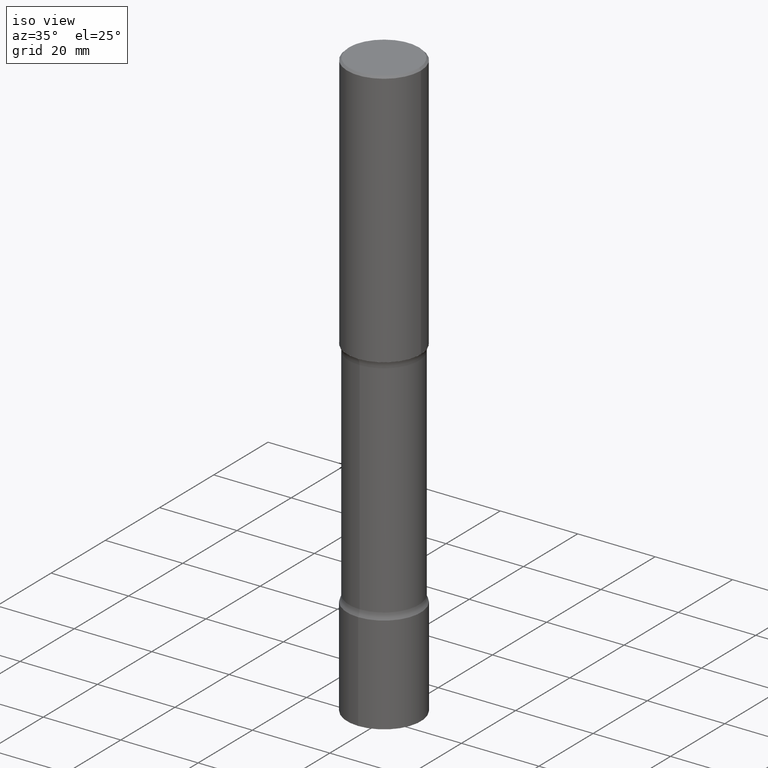
[diagram: clean part render]
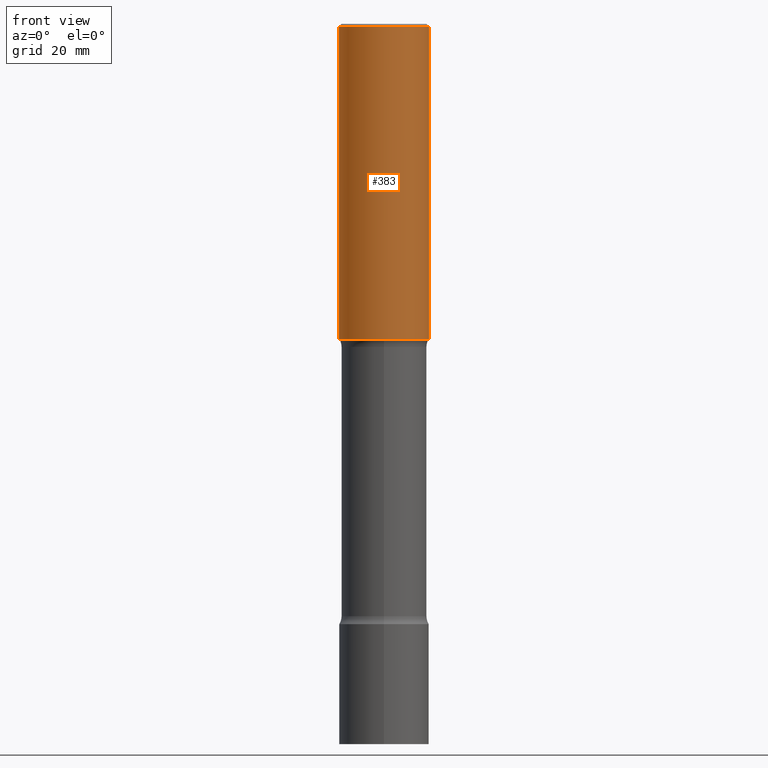
[diagram: tour spotlight — one face highlighted and labeled with its STEP entity id]
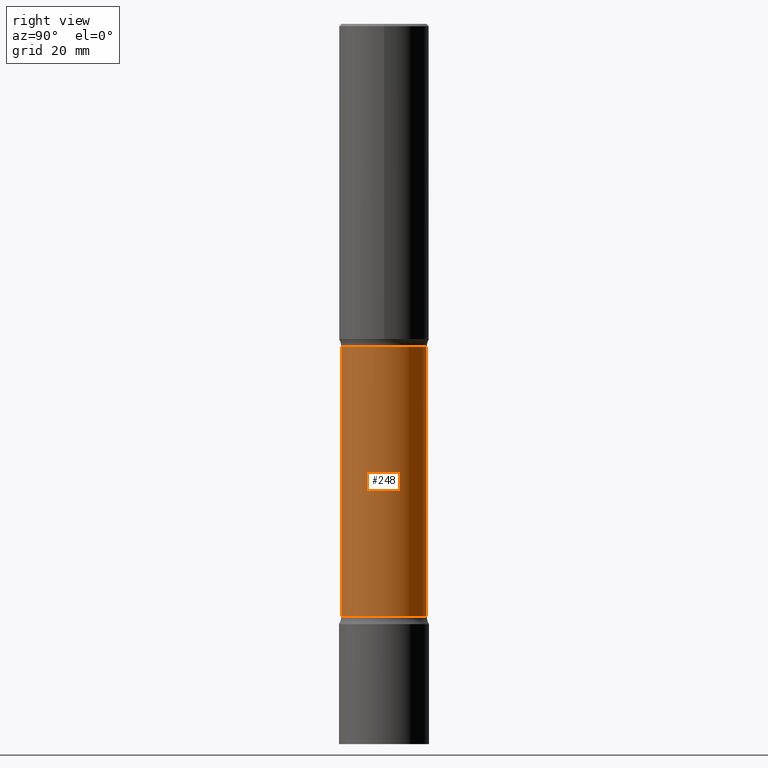
[diagram: tour spotlight — one face highlighted and labeled with its STEP entity id]
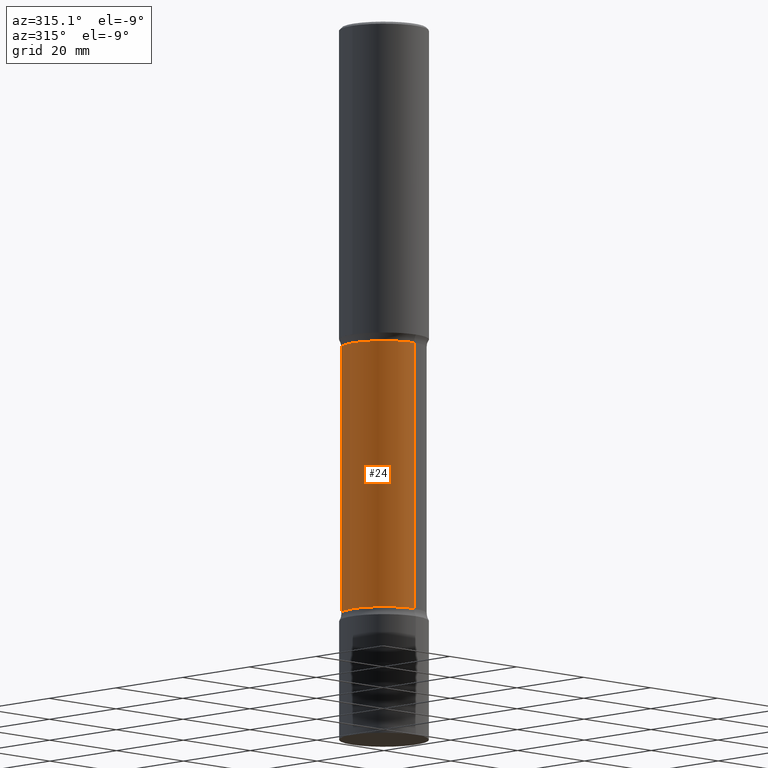
[diagram: tour spotlight — one face highlighted and labeled with its STEP entity id]
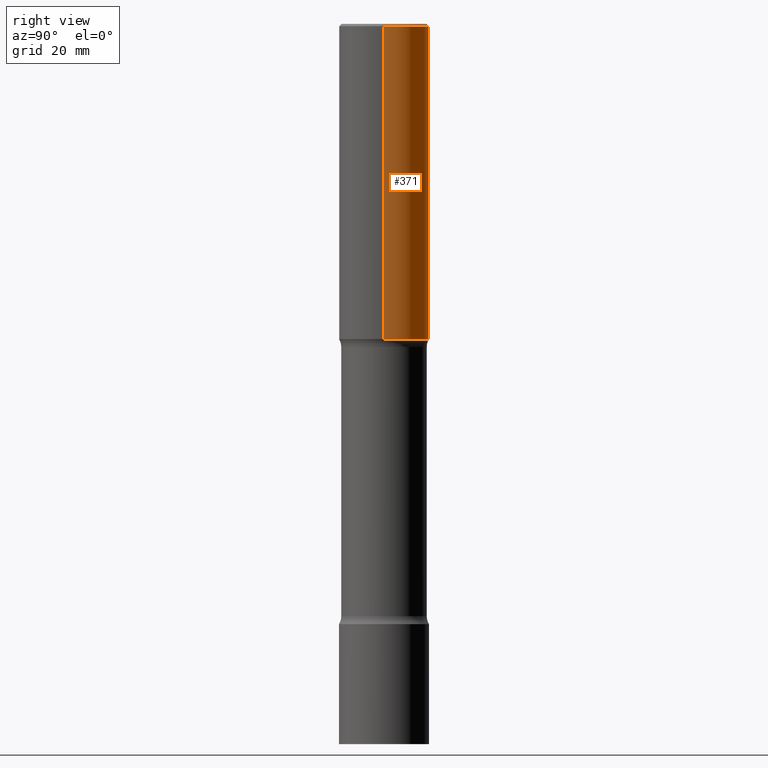
[diagram: tour spotlight — one face highlighted and labeled with its STEP entity id]
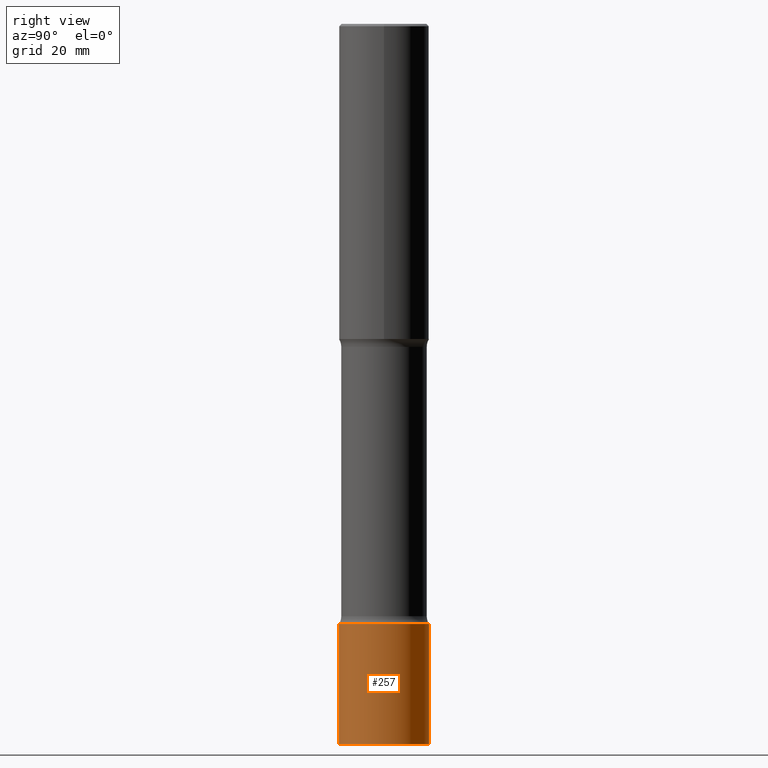
[diagram: tour spotlight — one face highlighted and labeled with its STEP entity id]
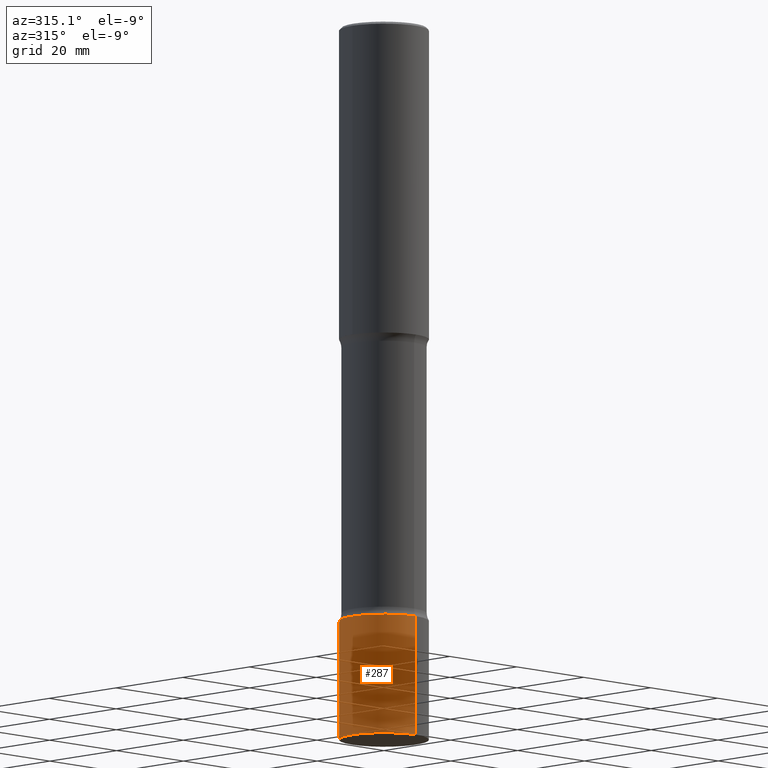
[diagram: tour spotlight — one face highlighted and labeled with its STEP entity id]
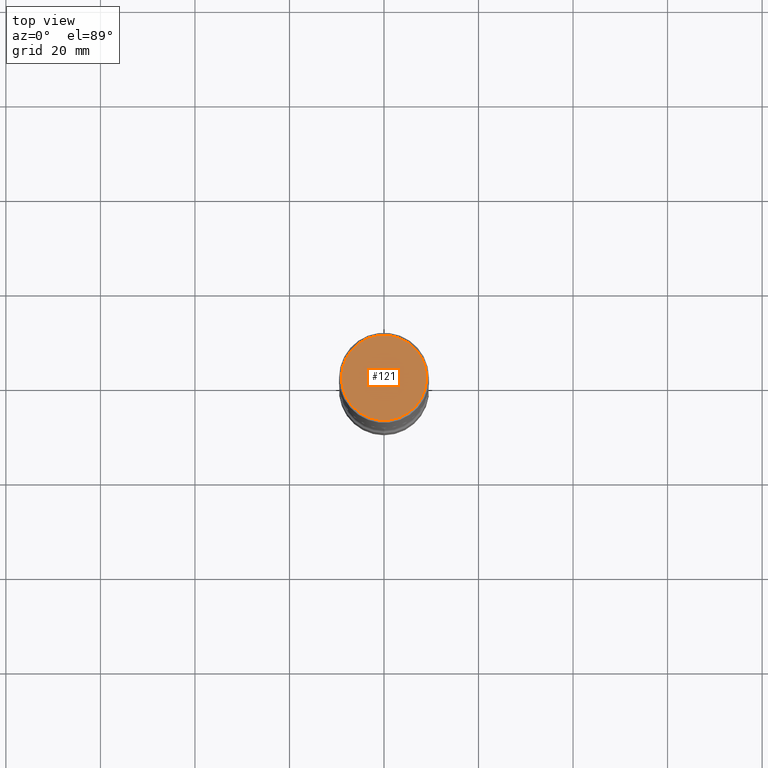
[diagram: tour spotlight — one face highlighted and labeled with its STEP entity id]
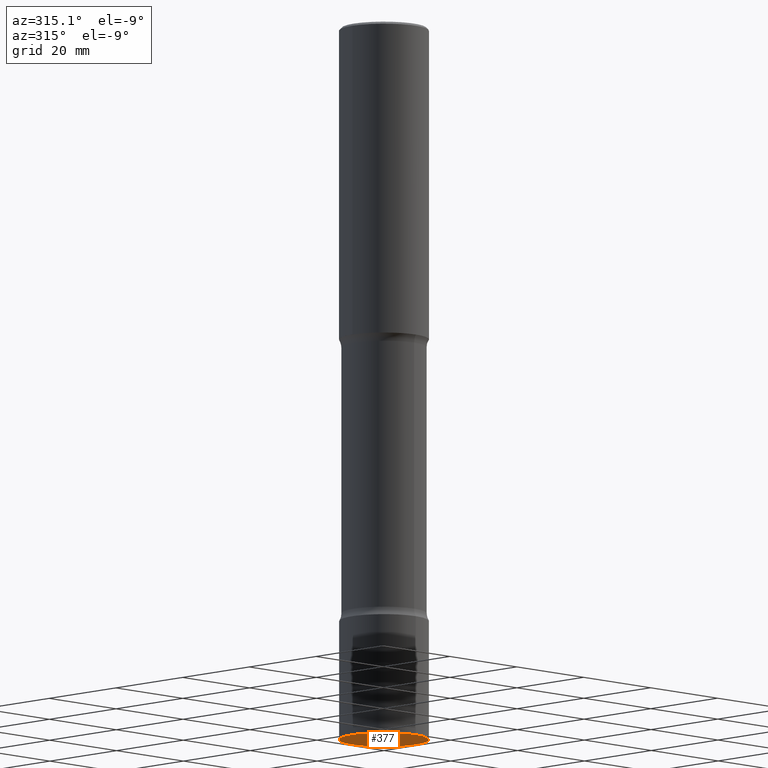
[diagram: tour spotlight — one face highlighted and labeled with its STEP entity id]
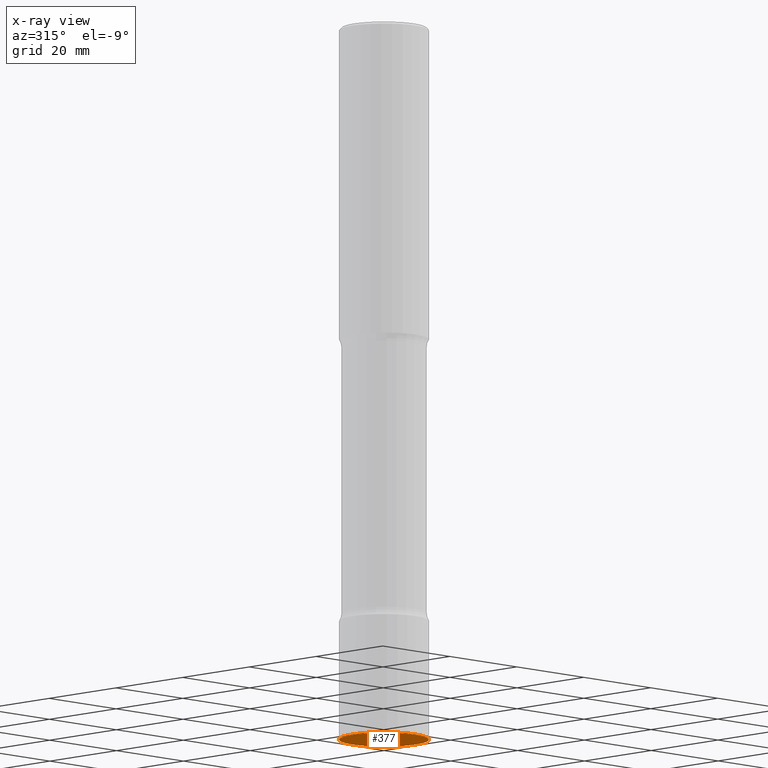
[diagram: x-ray of the same camera — body ghosted, this tour face saturated]
A machine part: a face-by-face anatomy tour. The part has 18 B-rep faces; the first image is the clean iso view, then the 8 largest visible faces are spotlighted one at a time (largest first), each with its STEP entity span.

Face 1 — front view, entity #383. In plain terms, the highlighted cylindrical surface (partial cylindrical patch) has radius 9.525 mm, axis along (-0, 0, 1).
Definition (entity closure, byte-faithful):
#4 = AXIS2_PLACEMENT_3D ( 'NONE', #171, #95, #211 ) ;
#8 = CARTESIAN_POINT ( 'NONE',  ( 0.000000000000000000, 0.000000000000000000, 0.000000000000000000 ) ) ;
#13 = ORIENTED_EDGE ( 'NONE', *, *, #40, .F. ) ;
#15 = CYLINDRICAL_SURFACE ( 'NONE', #177, 0.3749999999999999445 ) ;
#18 = LINE ( 'NONE', #491, #428 ) ;
#28 = CARTESIAN_POINT ( 'NONE',  ( -0.3749999999999999445, 2.664535259100375303E-15, -1.844600658845589318E-29 ) ) ;
#40 = EDGE_CURVE ( 'NONE', #492, #217, #92, .T. ) ;
#51 = DIRECTION ( 'NONE',  ( -2.445468806185136597E-29, 3.491481338843145583E-15, 1.000000000000000000 ) ) ;
#70 = CARTESIAN_POINT ( 'NONE',  ( -0.3750000000000001110, -1.952948811519681892E-15, -2.625000000000000000 ) ) ;
#89 = VERTEX_POINT ( 'NONE', #70 ) ;
#92 = CIRCLE ( 'NONE', #4, 0.3749999999999998890 ) ;
#95 = DIRECTION ( 'NONE',  ( -2.445468806185136597E-29, 3.491481338843145583E-15, 1.000000000000000000 ) ) ;
#97 = ORIENTED_EDGE ( 'NONE', *, *, #182, .F. ) ;
#104 = EDGE_CURVE ( 'NONE', #89, #352, #422, .T. ) ;
#132 = DIRECTION ( 'NONE',  ( 1.000000000000000000, -6.982962677686266711E-15, 4.876176775795935793E-29 ) ) ;
#142 = CARTESIAN_POINT ( 'NONE',  ( 6.419355616235983567E-29, -9.165138514463256612E-15, -2.625000000000000000 ) ) ;
#154 = ORIENTED_EDGE ( 'NONE', *, *, #104, .T. ) ;
#171 = CARTESIAN_POINT ( 'NONE',  ( 4.890937612370289799E-31, -6.982962677686315028E-17, -0.02000000000000006981 ) ) ;
#172 = AXIS2_PLACEMENT_3D ( 'NONE', #142, #375, #295 ) ;
#177 = AXIS2_PLACEMENT_3D ( 'NONE', #8, #51, #132 ) ;
#181 = DIRECTION ( 'NONE',  ( -2.445468806185136877E-29, 3.491481338843145188E-15, 1.000000000000000000 ) ) ;
#182 = EDGE_CURVE ( 'NONE', #89, #492, #331, .T. ) ;
#197 = VECTOR ( 'NONE', #181, 39.37007874015748143 ) ;
#211 = DIRECTION ( 'NONE',  ( 1.000000000000000000, -6.982962677686266711E-15, 0.000000000000000000 ) ) ;
#217 = VERTEX_POINT ( 'NONE', #259 ) ;
#240 = CARTESIAN_POINT ( 'NONE',  ( 0.3750000000000001110, -1.178374951859560821E-14, -2.625000000000000000 ) ) ;
#259 = CARTESIAN_POINT ( 'NONE',  ( 0.3749999999999998890, -2.642516375941187240E-15, -0.02000000000000006981 ) ) ;
#285 = CARTESIAN_POINT ( 'NONE',  ( -0.3749999999999998890, 2.548781377355485929E-15, -0.02000000000000006981 ) ) ;
#295 = DIRECTION ( 'NONE',  ( 1.000000000000000000, -6.982962677686265922E-15, 0.000000000000000000 ) ) ;
#331 = LINE ( 'NONE', #28, #197 ) ;
#352 = VERTEX_POINT ( 'NONE', #240 ) ;
#364 = DIRECTION ( 'NONE',  ( -2.445468806185136877E-29, 3.491481338843145188E-15, 1.000000000000000000 ) ) ;
#367 = FACE_OUTER_BOUND ( 'NONE', #437, .T. ) ;
#375 = DIRECTION ( 'NONE',  ( -2.445468806185136597E-29, 3.491481338843145583E-15, 1.000000000000000000 ) ) ;
#383 = ADVANCED_FACE ( 'NONE', ( #367 ), #15, .T. ) ;
#394 = EDGE_CURVE ( 'NONE', #352, #217, #18, .T. ) ;
#422 = CIRCLE ( 'NONE', #172, 0.3750000000000001110 ) ;
#428 = VECTOR ( 'NONE', #364, 39.37007874015748143 ) ;
#437 = EDGE_LOOP ( 'NONE', ( #97, #154, #472, #13 ) ) ;
#472 = ORIENTED_EDGE ( 'NONE', *, *, #394, .T. ) ;
#491 = CARTESIAN_POINT ( 'NONE',  ( 0.3749999999999999445, -2.618611004132349622E-15, 1.828566290923475642E-29 ) ) ;
#492 = VERTEX_POINT ( 'NONE', #285 ) ;

Face 2 — right view, entity #248. In plain terms, the highlighted cylindrical surface (partial cylindrical patch) has radius 9.0424 mm, axis along (0, -0, -1).
Definition (entity closure, byte-faithful):
#6 = VERTEX_POINT ( 'NONE', #283 ) ;
#11 = ORIENTED_EDGE ( 'NONE', *, *, #58, .T. ) ;
#14 = EDGE_CURVE ( 'NONE', #313, #174, #178, .T. ) ;
#17 = CIRCLE ( 'NONE', #261, 0.3560000000000000386 ) ;
#23 = CARTESIAN_POINT ( 'NONE',  ( 6.364136736350787517E-29, -9.707533279983875280E-15, -2.691249528300207583 ) ) ;
#35 = DIRECTION ( 'NONE',  ( 2.539636452137639577E-29, -3.356627910149604174E-15, -1.000000000000000000 ) ) ;
#47 = ORIENTED_EDGE ( 'NONE', *, *, #309, .F. ) ;
#58 = EDGE_CURVE ( 'NONE', #201, #174, #127, .T. ) ;
#91 = CARTESIAN_POINT ( 'NONE',  ( 1.205927387616141491E-28, -1.723477453513573671E-14, -4.933750471699791973 ) ) ;
#115 = AXIS2_PLACEMENT_3D ( 'NONE', #329, #151, #231 ) ;
#127 = LINE ( 'NONE', #288, #302 ) ;
#150 = FACE_OUTER_BOUND ( 'NONE', #434, .T. ) ;
#151 = DIRECTION ( 'NONE',  ( 2.539636452137639577E-29, -3.356627910149603780E-15, -1.000000000000000000 ) ) ;
#174 = VERTEX_POINT ( 'NONE', #298 ) ;
#178 = CIRCLE ( 'NONE', #215, 0.3560000000000003717 ) ;
#184 = DIRECTION ( 'NONE',  ( 6.982962677686265922E-15, 1.000000000000000000, -3.069492127712654929E-15 ) ) ;
#190 = EDGE_CURVE ( 'NONE', #6, #201, #17, .T. ) ;
#191 = CARTESIAN_POINT ( 'NONE',  ( 2.485934713256459712E-15, 0.3559999999999793885, -6.000000000000000888 ) ) ;
#201 = VERTEX_POINT ( 'NONE', #379 ) ;
#215 = AXIS2_PLACEMENT_3D ( 'NONE', #91, #415, #372 ) ;
#228 = CYLINDRICAL_SURFACE ( 'NONE', #115, 0.3560000000000002607 ) ;
#231 = DIRECTION ( 'NONE',  ( 6.982962677686265133E-15, 1.000000000000000000, -3.069492127712652957E-15 ) ) ;
#248 = ADVANCED_FACE ( 'NONE', ( #150 ), #228, .T. ) ;
#261 = AXIS2_PLACEMENT_3D ( 'NONE', #23, #334, #184 ) ;
#283 = CARTESIAN_POINT ( 'NONE',  ( 2.485934713256374910E-15, 0.3559999999999903242, -2.691249528300208915 ) ) ;
#288 = CARTESIAN_POINT ( 'NONE',  ( -2.442337287206519543E-15, -0.3560000000000210774, -5.999999999999998224 ) ) ;
#290 = ORIENTED_EDGE ( 'NONE', *, *, #190, .T. ) ;
#298 = CARTESIAN_POINT ( 'NONE',  ( -2.507512018185375002E-15, -0.3560000000000175802, -4.933750471699791085 ) ) ;
#302 = VECTOR ( 'NONE', #446, 39.37007874015748143 ) ;
#309 = EDGE_CURVE ( 'NONE', #6, #313, #475, .T. ) ;
#313 = VERTEX_POINT ( 'NONE', #346 ) ;
#328 = ORIENTED_EDGE ( 'NONE', *, *, #14, .F. ) ;
#329 = CARTESIAN_POINT ( 'NONE',  ( 1.476716004530718656E-28, -2.081377746101206439E-14, -5.999999999999999112 ) ) ;
#334 = DIRECTION ( 'NONE',  ( 2.539636452137639577E-29, -3.356627910149603780E-15, -1.000000000000000000 ) ) ;
#346 = CARTESIAN_POINT ( 'NONE',  ( 2.485934713256434074E-15, 0.3559999999999831632, -4.933750471699792861 ) ) ;
#372 = DIRECTION ( 'NONE',  ( 6.982962677686265133E-15, 1.000000000000000000, -3.069492127712652168E-15 ) ) ;
#379 = CARTESIAN_POINT ( 'NONE',  ( -2.507512018185432195E-15, -0.3560000000000097531, -2.691249528300206695 ) ) ;
#415 = DIRECTION ( 'NONE',  ( 2.539636452137639577E-29, -3.356627910149603780E-15, -1.000000000000000000 ) ) ;
#430 = VECTOR ( 'NONE', #35, 39.37007874015748143 ) ;
#434 = EDGE_LOOP ( 'NONE', ( #290, #11, #328, #47 ) ) ;
#446 = DIRECTION ( 'NONE',  ( 2.539636452137639577E-29, -3.356627910149604174E-15, -1.000000000000000000 ) ) ;
#475 = LINE ( 'NONE', #191, #430 ) ;

Face 3 — auxiliary view, entity #24. In plain terms, the highlighted cylindrical surface (partial cylindrical patch) has radius 9.0424 mm, axis along (0, -0, -1).
Definition (entity closure, byte-faithful):
#3 = ORIENTED_EDGE ( 'NONE', *, *, #309, .T. ) ;
#6 = VERTEX_POINT ( 'NONE', #283 ) ;
#24 = ADVANCED_FACE ( 'NONE', ( #405 ), #52, .T. ) ;
#26 = AXIS2_PLACEMENT_3D ( 'NONE', #169, #448, #210 ) ;
#35 = DIRECTION ( 'NONE',  ( 2.539636452137639577E-29, -3.356627910149604174E-15, -1.000000000000000000 ) ) ;
#52 = CYLINDRICAL_SURFACE ( 'NONE', #26, 0.3560000000000002607 ) ;
#58 = EDGE_CURVE ( 'NONE', #201, #174, #127, .T. ) ;
#96 = DIRECTION ( 'NONE',  ( 2.539636452137639577E-29, -3.356627910149603780E-15, -1.000000000000000000 ) ) ;
#127 = LINE ( 'NONE', #288, #302 ) ;
#143 = EDGE_CURVE ( 'NONE', #201, #6, #289, .T. ) ;
#155 = CIRCLE ( 'NONE', #348, 0.3560000000000003717 ) ;
#169 = CARTESIAN_POINT ( 'NONE',  ( 1.476716004530718656E-28, -2.081377746101206439E-14, -5.999999999999999112 ) ) ;
#174 = VERTEX_POINT ( 'NONE', #298 ) ;
#191 = CARTESIAN_POINT ( 'NONE',  ( 2.485934713256459712E-15, 0.3559999999999793885, -6.000000000000000888 ) ) ;
#201 = VERTEX_POINT ( 'NONE', #379 ) ;
#210 = DIRECTION ( 'NONE',  ( 6.982962677686265133E-15, 1.000000000000000000, -3.069492127712652957E-15 ) ) ;
#255 = DIRECTION ( 'NONE',  ( 2.539636452137639577E-29, -3.356627910149603780E-15, -1.000000000000000000 ) ) ;
#283 = CARTESIAN_POINT ( 'NONE',  ( 2.485934713256374910E-15, 0.3559999999999903242, -2.691249528300208915 ) ) ;
#288 = CARTESIAN_POINT ( 'NONE',  ( -2.442337287206519543E-15, -0.3560000000000210774, -5.999999999999998224 ) ) ;
#289 = CIRCLE ( 'NONE', #504, 0.3560000000000000386 ) ;
#298 = CARTESIAN_POINT ( 'NONE',  ( -2.507512018185375002E-15, -0.3560000000000175802, -4.933750471699791085 ) ) ;
#302 = VECTOR ( 'NONE', #446, 39.37007874015748143 ) ;
#308 = ORIENTED_EDGE ( 'NONE', *, *, #143, .T. ) ;
#309 = EDGE_CURVE ( 'NONE', #6, #313, #475, .T. ) ;
#313 = VERTEX_POINT ( 'NONE', #346 ) ;
#327 = DIRECTION ( 'NONE',  ( 6.982962677686265133E-15, 1.000000000000000000, -3.069492127712652168E-15 ) ) ;
#346 = CARTESIAN_POINT ( 'NONE',  ( 2.485934713256434074E-15, 0.3559999999999831632, -4.933750471699792861 ) ) ;
#348 = AXIS2_PLACEMENT_3D ( 'NONE', #451, #96, #327 ) ;
#379 = CARTESIAN_POINT ( 'NONE',  ( -2.507512018185432195E-15, -0.3560000000000097531, -2.691249528300206695 ) ) ;
#382 = DIRECTION ( 'NONE',  ( 6.982962677686265922E-15, 1.000000000000000000, -3.069492127712654929E-15 ) ) ;
#387 = EDGE_CURVE ( 'NONE', #174, #313, #155, .T. ) ;
#396 = ORIENTED_EDGE ( 'NONE', *, *, #58, .F. ) ;
#405 = FACE_OUTER_BOUND ( 'NONE', #474, .T. ) ;
#430 = VECTOR ( 'NONE', #35, 39.37007874015748143 ) ;
#432 = ORIENTED_EDGE ( 'NONE', *, *, #387, .F. ) ;
#446 = DIRECTION ( 'NONE',  ( 2.539636452137639577E-29, -3.356627910149604174E-15, -1.000000000000000000 ) ) ;
#448 = DIRECTION ( 'NONE',  ( 2.539636452137639577E-29, -3.356627910149603780E-15, -1.000000000000000000 ) ) ;
#451 = CARTESIAN_POINT ( 'NONE',  ( 1.205927387616141491E-28, -1.723477453513573671E-14, -4.933750471699791973 ) ) ;
#463 = CARTESIAN_POINT ( 'NONE',  ( 6.364136736350787517E-29, -9.707533279983875280E-15, -2.691249528300207583 ) ) ;
#474 = EDGE_LOOP ( 'NONE', ( #396, #308, #3, #432 ) ) ;
#475 = LINE ( 'NONE', #191, #430 ) ;
#504 = AXIS2_PLACEMENT_3D ( 'NONE', #463, #255, #382 ) ;

Face 4 — right view, entity #371. In plain terms, the highlighted cylindrical surface (partial cylindrical patch) has radius 9.525 mm, axis along (-0, 0, 1).
Definition (entity closure, byte-faithful):
#1 = ORIENTED_EDGE ( 'NONE', *, *, #354, .F. ) ;
#18 = LINE ( 'NONE', #491, #428 ) ;
#28 = CARTESIAN_POINT ( 'NONE',  ( -0.3749999999999999445, 2.664535259100375303E-15, -1.844600658845589318E-29 ) ) ;
#36 = CIRCLE ( 'NONE', #166, 0.3749999999999998890 ) ;
#37 = CARTESIAN_POINT ( 'NONE',  ( 6.419355616235983567E-29, -9.165138514463256612E-15, -2.625000000000000000 ) ) ;
#70 = CARTESIAN_POINT ( 'NONE',  ( -0.3750000000000001110, -1.952948811519681892E-15, -2.625000000000000000 ) ) ;
#75 = AXIS2_PLACEMENT_3D ( 'NONE', #37, #351, #189 ) ;
#89 = VERTEX_POINT ( 'NONE', #70 ) ;
#119 = DIRECTION ( 'NONE',  ( 1.000000000000000000, -6.982962677686266711E-15, 0.000000000000000000 ) ) ;
#161 = EDGE_LOOP ( 'NONE', ( #357, #250, #1, #398 ) ) ;
#166 = AXIS2_PLACEMENT_3D ( 'NONE', #473, #389, #119 ) ;
#181 = DIRECTION ( 'NONE',  ( -2.445468806185136877E-29, 3.491481338843145188E-15, 1.000000000000000000 ) ) ;
#182 = EDGE_CURVE ( 'NONE', #89, #492, #331, .T. ) ;
#189 = DIRECTION ( 'NONE',  ( 1.000000000000000000, -6.982962677686265922E-15, 0.000000000000000000 ) ) ;
#197 = VECTOR ( 'NONE', #181, 39.37007874015748143 ) ;
#217 = VERTEX_POINT ( 'NONE', #259 ) ;
#235 = DIRECTION ( 'NONE',  ( 1.000000000000000000, -6.982962677686266711E-15, 4.876176775795935793E-29 ) ) ;
#240 = CARTESIAN_POINT ( 'NONE',  ( 0.3750000000000001110, -1.178374951859560821E-14, -2.625000000000000000 ) ) ;
#250 = ORIENTED_EDGE ( 'NONE', *, *, #182, .T. ) ;
#253 = CIRCLE ( 'NONE', #75, 0.3750000000000001110 ) ;
#259 = CARTESIAN_POINT ( 'NONE',  ( 0.3749999999999998890, -2.642516375941187240E-15, -0.02000000000000006981 ) ) ;
#274 = FACE_OUTER_BOUND ( 'NONE', #161, .T. ) ;
#285 = CARTESIAN_POINT ( 'NONE',  ( -0.3749999999999998890, 2.548781377355485929E-15, -0.02000000000000006981 ) ) ;
#296 = EDGE_CURVE ( 'NONE', #352, #89, #253, .T. ) ;
#331 = LINE ( 'NONE', #28, #197 ) ;
#351 = DIRECTION ( 'NONE',  ( -2.445468806185136597E-29, 3.491481338843145583E-15, 1.000000000000000000 ) ) ;
#352 = VERTEX_POINT ( 'NONE', #240 ) ;
#354 = EDGE_CURVE ( 'NONE', #217, #492, #36, .T. ) ;
#357 = ORIENTED_EDGE ( 'NONE', *, *, #296, .T. ) ;
#364 = DIRECTION ( 'NONE',  ( -2.445468806185136877E-29, 3.491481338843145188E-15, 1.000000000000000000 ) ) ;
#371 = ADVANCED_FACE ( 'NONE', ( #274 ), #436, .T. ) ;
#389 = DIRECTION ( 'NONE',  ( -2.445468806185136597E-29, 3.491481338843145583E-15, 1.000000000000000000 ) ) ;
#394 = EDGE_CURVE ( 'NONE', #352, #217, #18, .T. ) ;
#398 = ORIENTED_EDGE ( 'NONE', *, *, #394, .F. ) ;
#428 = VECTOR ( 'NONE', #364, 39.37007874015748143 ) ;
#433 = DIRECTION ( 'NONE',  ( -2.445468806185136597E-29, 3.491481338843145583E-15, 1.000000000000000000 ) ) ;
#436 = CYLINDRICAL_SURFACE ( 'NONE', #460, 0.3749999999999999445 ) ;
#460 = AXIS2_PLACEMENT_3D ( 'NONE', #470, #433, #235 ) ;
#470 = CARTESIAN_POINT ( 'NONE',  ( 0.000000000000000000, 0.000000000000000000, 0.000000000000000000 ) ) ;
#473 = CARTESIAN_POINT ( 'NONE',  ( 4.890937612370289799E-31, -6.982962677686315028E-17, -0.02000000000000006981 ) ) ;
#491 = CARTESIAN_POINT ( 'NONE',  ( 0.3749999999999999445, -2.618611004132349622E-15, 1.828566290923475642E-29 ) ) ;
#492 = VERTEX_POINT ( 'NONE', #285 ) ;

Face 5 — right view, entity #257. In plain terms, the highlighted cylindrical surface (partial cylindrical patch) has radius 9.525 mm, axis along (-0, 0, 1).
Definition (entity closure, byte-faithful):
#5 = DIRECTION ( 'NONE',  ( -6.982962677686266711E-15, -1.000000000000000000, 3.491429910172492753E-15 ) ) ;
#31 = CARTESIAN_POINT ( 'NONE',  ( -2.618611004132202499E-15, -0.3750000000000208722, -5.999999999999999112 ) ) ;
#34 = VECTOR ( 'NONE', #249, 39.37007874015748143 ) ;
#80 = ORIENTED_EDGE ( 'NONE', *, *, #152, .T. ) ;
#81 = CYLINDRICAL_SURFACE ( 'NONE', #385, 0.3749999999999998890 ) ;
#83 = ORIENTED_EDGE ( 'NONE', *, *, #221, .F. ) ;
#93 = VERTEX_POINT ( 'NONE', #258 ) ;
#103 = DIRECTION ( 'NONE',  ( -2.445504718633909957E-29, 3.491429910172492358E-15, 1.000000000000000000 ) ) ;
#108 = CARTESIAN_POINT ( 'NONE',  ( 1.222752359316955203E-28, -1.745714955086246416E-14, -5.000000000000000000 ) ) ;
#111 = EDGE_LOOP ( 'NONE', ( #214, #80, #83, #345 ) ) ;
#120 = VERTEX_POINT ( 'NONE', #31 ) ;
#122 = CARTESIAN_POINT ( 'NONE',  ( 0.000000000000000000, 0.000000000000000000, 0.000000000000000000 ) ) ;
#125 = AXIS2_PLACEMENT_3D ( 'NONE', #108, #262, #186 ) ;
#152 = EDGE_CURVE ( 'NONE', #93, #206, #500, .T. ) ;
#162 = DIRECTION ( 'NONE',  ( -2.445504718633909957E-29, 3.491429910172492358E-15, 1.000000000000000000 ) ) ;
#186 = DIRECTION ( 'NONE',  ( -6.982962677686266711E-15, -1.000000000000000000, 2.913971193241881555E-15 ) ) ;
#192 = VERTEX_POINT ( 'NONE', #337 ) ;
#206 = VERTEX_POINT ( 'NONE', #381 ) ;
#207 = CIRCLE ( 'NONE', #403, 0.3749999999999998890 ) ;
#214 = ORIENTED_EDGE ( 'NONE', *, *, #280, .T. ) ;
#221 = EDGE_CURVE ( 'NONE', #192, #206, #341, .T. ) ;
#249 = DIRECTION ( 'NONE',  ( -2.445504718633909957E-29, 3.491429910172492358E-15, 1.000000000000000000 ) ) ;
#257 = ADVANCED_FACE ( 'NONE', ( #310 ), #81, .T. ) ;
#258 = CARTESIAN_POINT ( 'NONE',  ( 2.664535259100509015E-15, 0.3749999999999789058, -6.000000000000001776 ) ) ;
#262 = DIRECTION ( 'NONE',  ( -2.445504718633909957E-29, 3.491429910172492358E-15, 1.000000000000000000 ) ) ;
#265 = DIRECTION ( 'NONE',  ( -2.445504718633909957E-29, 3.491429910172492358E-15, 1.000000000000000000 ) ) ;
#280 = EDGE_CURVE ( 'NONE', #120, #93, #207, .T. ) ;
#310 = FACE_OUTER_BOUND ( 'NONE', #111, .T. ) ;
#337 = CARTESIAN_POINT ( 'NONE',  ( -2.618611004132226954E-15, -0.3750000000000173750, -4.999999999999999112 ) ) ;
#341 = CIRCLE ( 'NONE', #125, 0.3749999999999998890 ) ;
#345 = ORIENTED_EDGE ( 'NONE', *, *, #464, .F. ) ;
#359 = CARTESIAN_POINT ( 'NONE',  ( -2.618611004132349228E-15, -0.3749999999999998890, 1.309286216314684338E-15 ) ) ;
#381 = CARTESIAN_POINT ( 'NONE',  ( 2.664535259100521636E-15, 0.3749999999999824585, -5.000000000000000888 ) ) ;
#385 = AXIS2_PLACEMENT_3D ( 'NONE', #122, #265, #5 ) ;
#403 = AXIS2_PLACEMENT_3D ( 'NONE', #427, #162, #507 ) ;
#416 = CARTESIAN_POINT ( 'NONE',  ( 2.664535259100374514E-15, 0.3749999999999998890, -1.309286216314684338E-15 ) ) ;
#427 = CARTESIAN_POINT ( 'NONE',  ( 1.467302831180345974E-28, -2.094857946103495573E-14, -6.000000000000000888 ) ) ;
#462 = VECTOR ( 'NONE', #103, 39.37007874015748143 ) ;
#464 = EDGE_CURVE ( 'NONE', #120, #192, #488, .T. ) ;
#488 = LINE ( 'NONE', #359, #34 ) ;
#500 = LINE ( 'NONE', #416, #462 ) ;
#507 = DIRECTION ( 'NONE',  ( -6.982962677686266711E-15, -1.000000000000000000, 2.913971193241881555E-15 ) ) ;

Face 6 — auxiliary view, entity #287. In plain terms, the highlighted cylindrical surface (partial cylindrical patch) has radius 9.525 mm, axis along (-0, 0, 1).
Definition (entity closure, byte-faithful):
#31 = CARTESIAN_POINT ( 'NONE',  ( -2.618611004132202499E-15, -0.3750000000000208722, -5.999999999999999112 ) ) ;
#34 = VECTOR ( 'NONE', #249, 39.37007874015748143 ) ;
#45 = ORIENTED_EDGE ( 'NONE', *, *, #464, .T. ) ;
#93 = VERTEX_POINT ( 'NONE', #258 ) ;
#103 = DIRECTION ( 'NONE',  ( -2.445504718633909957E-29, 3.491429910172492358E-15, 1.000000000000000000 ) ) ;
#120 = VERTEX_POINT ( 'NONE', #31 ) ;
#152 = EDGE_CURVE ( 'NONE', #93, #206, #500, .T. ) ;
#192 = VERTEX_POINT ( 'NONE', #337 ) ;
#205 = CARTESIAN_POINT ( 'NONE',  ( 1.467302831180345974E-28, -2.094857946103495573E-14, -6.000000000000000888 ) ) ;
#206 = VERTEX_POINT ( 'NONE', #381 ) ;
#234 = EDGE_CURVE ( 'NONE', #206, #192, #414, .T. ) ;
#241 = ORIENTED_EDGE ( 'NONE', *, *, #234, .F. ) ;
#249 = DIRECTION ( 'NONE',  ( -2.445504718633909957E-29, 3.491429910172492358E-15, 1.000000000000000000 ) ) ;
#258 = CARTESIAN_POINT ( 'NONE',  ( 2.664535259100509015E-15, 0.3749999999999789058, -6.000000000000001776 ) ) ;
#278 = DIRECTION ( 'NONE',  ( -6.982962677686266711E-15, -1.000000000000000000, 3.491429910172492753E-15 ) ) ;
#287 = ADVANCED_FACE ( 'NONE', ( #431 ), #344, .T. ) ;
#294 = CIRCLE ( 'NONE', #411, 0.3749999999999998890 ) ;
#322 = DIRECTION ( 'NONE',  ( -6.982962677686266711E-15, -1.000000000000000000, 2.913971193241881555E-15 ) ) ;
#337 = CARTESIAN_POINT ( 'NONE',  ( -2.618611004132226954E-15, -0.3750000000000173750, -4.999999999999999112 ) ) ;
#339 = DIRECTION ( 'NONE',  ( -2.445504718633909957E-29, 3.491429910172492358E-15, 1.000000000000000000 ) ) ;
#344 = CYLINDRICAL_SURFACE ( 'NONE', #469, 0.3749999999999998890 ) ;
#359 = CARTESIAN_POINT ( 'NONE',  ( -2.618611004132349228E-15, -0.3749999999999998890, 1.309286216314684338E-15 ) ) ;
#381 = CARTESIAN_POINT ( 'NONE',  ( 2.664535259100521636E-15, 0.3749999999999824585, -5.000000000000000888 ) ) ;
#386 = CARTESIAN_POINT ( 'NONE',  ( 0.000000000000000000, 0.000000000000000000, 0.000000000000000000 ) ) ;
#388 = ORIENTED_EDGE ( 'NONE', *, *, #152, .F. ) ;
#406 = AXIS2_PLACEMENT_3D ( 'NONE', #424, #339, #503 ) ;
#411 = AXIS2_PLACEMENT_3D ( 'NONE', #205, #447, #322 ) ;
#414 = CIRCLE ( 'NONE', #406, 0.3749999999999998890 ) ;
#416 = CARTESIAN_POINT ( 'NONE',  ( 2.664535259100374514E-15, 0.3749999999999998890, -1.309286216314684338E-15 ) ) ;
#424 = CARTESIAN_POINT ( 'NONE',  ( 1.222752359316955203E-28, -1.745714955086246416E-14, -5.000000000000000000 ) ) ;
#426 = EDGE_CURVE ( 'NONE', #93, #120, #294, .T. ) ;
#431 = FACE_OUTER_BOUND ( 'NONE', #441, .T. ) ;
#441 = EDGE_LOOP ( 'NONE', ( #388, #476, #45, #241 ) ) ;
#447 = DIRECTION ( 'NONE',  ( -2.445504718633909957E-29, 3.491429910172492358E-15, 1.000000000000000000 ) ) ;
#462 = VECTOR ( 'NONE', #103, 39.37007874015748143 ) ;
#464 = EDGE_CURVE ( 'NONE', #120, #192, #488, .T. ) ;
#466 = DIRECTION ( 'NONE',  ( -2.445504718633909957E-29, 3.491429910172492358E-15, 1.000000000000000000 ) ) ;
#469 = AXIS2_PLACEMENT_3D ( 'NONE', #386, #466, #278 ) ;
#476 = ORIENTED_EDGE ( 'NONE', *, *, #426, .T. ) ;
#488 = LINE ( 'NONE', #359, #34 ) ;
#500 = LINE ( 'NONE', #416, #462 ) ;
#503 = DIRECTION ( 'NONE',  ( -6.982962677686266711E-15, -1.000000000000000000, 2.913971193241881555E-15 ) ) ;

Face 7 — top view, entity #121. In plain terms, the highlighted planar face has unit normal (0, -0, -1).
Definition (entity closure, byte-faithful):
#10 = DIRECTION ( 'NONE',  ( -2.445468806185136597E-29, 3.491481338843145583E-15, 1.000000000000000000 ) ) ;
#48 = CARTESIAN_POINT ( 'NONE',  ( -1.043851414335219820E-46, 1.490343170380447200E-32, 4.268512490100411279E-18 ) ) ;
#55 = DIRECTION ( 'NONE',  ( 1.000000000000000000, -6.982962677686266711E-15, 4.876231632511990425E-29 ) ) ;
#57 = CIRCLE ( 'NONE', #284, 0.3549999999999998157 ) ;
#72 = AXIS2_PLACEMENT_3D ( 'NONE', #482, #409, #55 ) ;
#87 = EDGE_LOOP ( 'NONE', ( #392, #232 ) ) ;
#100 = CARTESIAN_POINT ( 'NONE',  ( 2.478951750578623420E-15, 0.3549999999999998157, -1.237341619044265835E-15 ) ) ;
#121 = ADVANCED_FACE ( 'NONE', ( #139 ), #175, .F. ) ;
#139 = FACE_OUTER_BOUND ( 'NONE', #87, .T. ) ;
#168 = DIRECTION ( 'NONE',  ( 1.000000000000000000, -6.982962677686266711E-15, 4.876231632511990425E-29 ) ) ;
#175 = PLANE ( 'NONE',  #487 ) ;
#187 = CIRCLE ( 'NONE', #72, 0.3549999999999998157 ) ;
#226 = DIRECTION ( 'NONE',  ( 2.438088387897960049E-29, -3.491481338843145188E-15, -1.000000000000000000 ) ) ;
#232 = ORIENTED_EDGE ( 'NONE', *, *, #478, .T. ) ;
#279 = VERTEX_POINT ( 'NONE', #508 ) ;
#284 = AXIS2_PLACEMENT_3D ( 'NONE', #48, #10, #168 ) ;
#392 = ORIENTED_EDGE ( 'NONE', *, *, #489, .T. ) ;
#397 = CARTESIAN_POINT ( 'NONE',  ( -0.3549999999999998157, 2.513866563967054675E-15, 4.268512490082953109E-18 ) ) ;
#409 = DIRECTION ( 'NONE',  ( -2.445468806185136597E-29, 3.491481338843145583E-15, 1.000000000000000000 ) ) ;
#429 = VERTEX_POINT ( 'NONE', #397 ) ;
#456 = DIRECTION ( 'NONE',  ( -1.000000000000000000, 6.982962677686265922E-15, -4.876176775795935793E-29 ) ) ;
#478 = EDGE_CURVE ( 'NONE', #279, #429, #57, .T. ) ;
#482 = CARTESIAN_POINT ( 'NONE',  ( -1.043851414335219820E-46, 1.490343170380447200E-32, 4.268512490100411279E-18 ) ) ;
#487 = AXIS2_PLACEMENT_3D ( 'NONE', #100, #226, #456 ) ;
#489 = EDGE_CURVE ( 'NONE', #429, #279, #187, .T. ) ;
#508 = CARTESIAN_POINT ( 'NONE',  ( 0.3549999999999998157, -2.538996582575039865E-15, 4.268512490117958041E-18 ) ) ;

Face 8 — auxiliary view, entity #377. An x-ray twin of the same camera follows (body ghosted, this face saturated) — the face is partly hidden behind the body. In plain terms, the highlighted planar face has unit normal (0, -0, -1).
Definition (entity closure, byte-faithful):
#19 = ORIENTED_EDGE ( 'NONE', *, *, #280, .F. ) ;
#31 = CARTESIAN_POINT ( 'NONE',  ( -2.618611004132202499E-15, -0.3750000000000208722, -5.999999999999999112 ) ) ;
#41 = PLANE ( 'NONE',  #105 ) ;
#93 = VERTEX_POINT ( 'NONE', #258 ) ;
#105 = AXIS2_PLACEMENT_3D ( 'NONE', #238, #159, #202 ) ;
#120 = VERTEX_POINT ( 'NONE', #31 ) ;
#159 = DIRECTION ( 'NONE',  ( 2.445504718633909677E-29, -3.491429910172492358E-15, -1.000000000000000000 ) ) ;
#162 = DIRECTION ( 'NONE',  ( -2.445504718633909957E-29, 3.491429910172492358E-15, 1.000000000000000000 ) ) ;
#202 = DIRECTION ( 'NONE',  ( 6.982962677686265922E-15, 1.000000000000000000, -3.491429910172492358E-15 ) ) ;
#205 = CARTESIAN_POINT ( 'NONE',  ( 1.467302831180345974E-28, -2.094857946103495573E-14, -6.000000000000000888 ) ) ;
#207 = CIRCLE ( 'NONE', #403, 0.3749999999999998890 ) ;
#238 = CARTESIAN_POINT ( 'NONE',  ( 2.463921585354229188E-29, -3.843271519251016677E-14, -5.999999999999999112 ) ) ;
#258 = CARTESIAN_POINT ( 'NONE',  ( 2.664535259100509015E-15, 0.3749999999999789058, -6.000000000000001776 ) ) ;
#280 = EDGE_CURVE ( 'NONE', #120, #93, #207, .T. ) ;
#294 = CIRCLE ( 'NONE', #411, 0.3749999999999998890 ) ;
#322 = DIRECTION ( 'NONE',  ( -6.982962677686266711E-15, -1.000000000000000000, 2.913971193241881555E-15 ) ) ;
#347 = EDGE_LOOP ( 'NONE', ( #19, #444 ) ) ;
#377 = ADVANCED_FACE ( 'NONE', ( #391 ), #41, .T. ) ;
#391 = FACE_OUTER_BOUND ( 'NONE', #347, .T. ) ;
#403 = AXIS2_PLACEMENT_3D ( 'NONE', #427, #162, #507 ) ;
#411 = AXIS2_PLACEMENT_3D ( 'NONE', #205, #447, #322 ) ;
#426 = EDGE_CURVE ( 'NONE', #93, #120, #294, .T. ) ;
#427 = CARTESIAN_POINT ( 'NONE',  ( 1.467302831180345974E-28, -2.094857946103495573E-14, -6.000000000000000888 ) ) ;
#444 = ORIENTED_EDGE ( 'NONE', *, *, #426, .F. ) ;
#447 = DIRECTION ( 'NONE',  ( -2.445504718633909957E-29, 3.491429910172492358E-15, 1.000000000000000000 ) ) ;
#507 = DIRECTION ( 'NONE',  ( -6.982962677686266711E-15, -1.000000000000000000, 2.913971193241881555E-15 ) ) ;